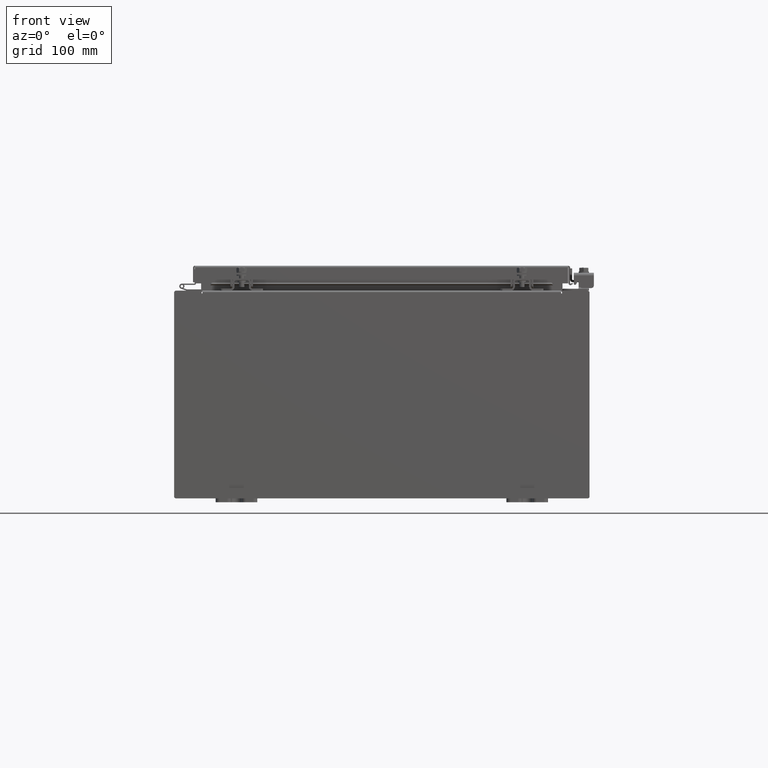
[diagram: clean part render]
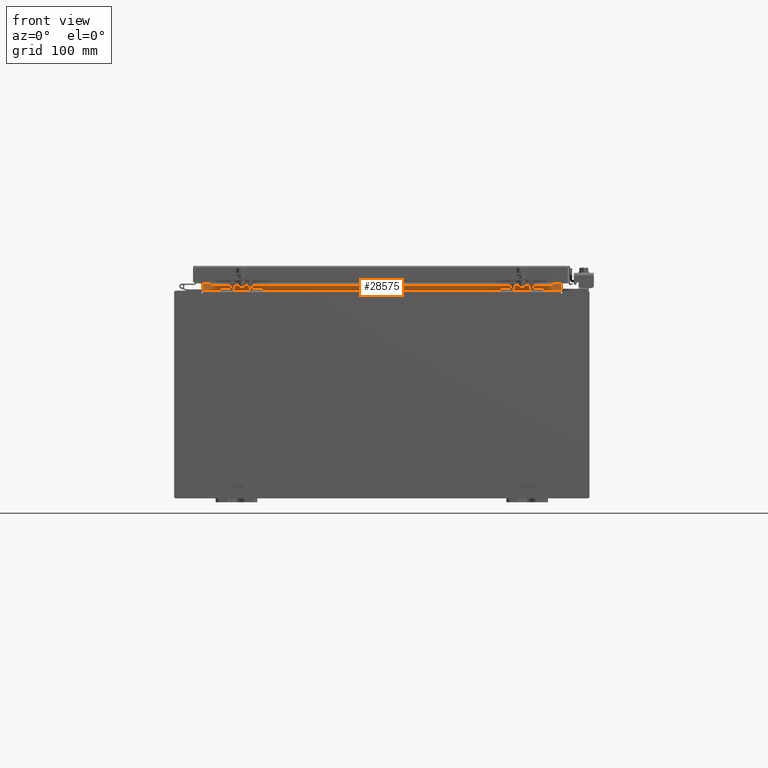
[diagram: same view with one face highlighted and labeled with its STEP entity id]
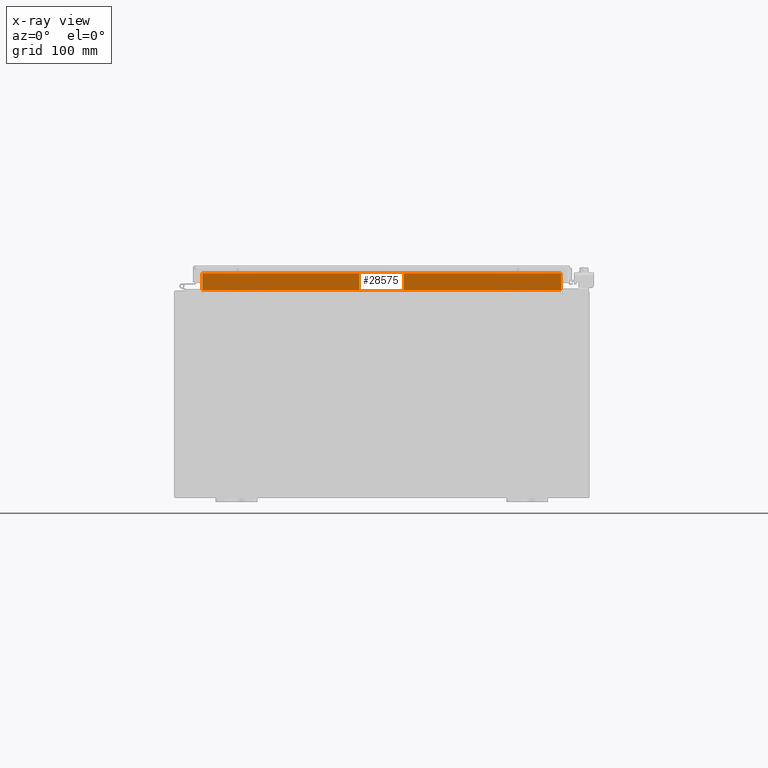
[diagram: x-ray of the same camera — body ghosted, the highlighted face saturated]
A machine part, front view. The second image highlights one B-rep face of the part: STEP entity #28575.
The next image is the same camera in x-ray: the body ghosted, the highlighted face saturated — about 0% of this face is hidden behind the body in this view.
In plain terms, the highlighted planar face has unit normal (-0, -1, 0).
Its self-contained STEP definition (entity closure, byte-faithful):
#389 = EDGE_CURVE ( 'NONE', #14596, #29605, #3641, .T. ) ;
#2114 = CARTESIAN_POINT ( 'NONE',  ( -8.637200000000000000, -1.300299999999999300, 5.013000000000002600 ) ) ;
#3641 = LINE ( 'NONE', #26509, #15605 ) ;
#3931 = CARTESIAN_POINT ( 'NONE',  ( -3.495496509759975400E-016, -1.300299999999999300, 2.731847993664263200E-015 ) ) ;
#5601 = VERTEX_POINT ( 'NONE', #18228 ) ;
#6488 = DIRECTION ( 'NONE',  ( 2.688223102148531000E-016, 1.000000000000000000, 1.677591767810432300E-016 ) ) ;
#6978 = VECTOR ( 'NONE', #19697, 39.37007874015748100 ) ;
#8063 = LINE ( 'NONE', #2114, #20809 ) ;
#8621 = EDGE_CURVE ( 'NONE', #24034, #5601, #22949, .T. ) ;
#9940 = CARTESIAN_POINT ( 'NONE',  ( 8.637200000000005300, -1.300300000000001300, 5.925300000000014200 ) ) ;
#14157 = ORIENTED_EDGE ( 'NONE', *, *, #22519, .F. ) ;
#14596 = VERTEX_POINT ( 'NONE', #14731 ) ;
#14731 = CARTESIAN_POINT ( 'NONE',  ( -8.637200000000000000, -1.300300000000001300, 5.837600000000003700 ) ) ;
#14943 = DIRECTION ( 'NONE',  ( 1.000000000000000000, 2.688223102148527500E-016, 8.326672684688674100E-016 ) ) ;
#15096 = DIRECTION ( 'NONE',  ( 8.326672684688674100E-016, -1.677591767810434500E-016, 1.000000000000000000 ) ) ;
#15605 = VECTOR ( 'NONE', #23941, 39.37007874015748100 ) ;
#17143 = CARTESIAN_POINT ( 'NONE',  ( 8.637200000000000000, -1.300300000000001300, 5.837600000000014300 ) ) ;
#18228 = CARTESIAN_POINT ( 'NONE',  ( 8.637200000000000000, -1.300300000000001300, 5.837600000000014300 ) ) ;
#18407 = FACE_OUTER_BOUND ( 'NONE', #18619, .T. ) ;
#18619 = EDGE_LOOP ( 'NONE', ( #19519, #21050, #19356, #14157 ) ) ;
#18797 = CARTESIAN_POINT ( 'NONE',  ( 8.637199999999996400, -1.300299999999999300, 5.013000000000013200 ) ) ;
#19356 = ORIENTED_EDGE ( 'NONE', *, *, #8621, .F. ) ;
#19519 = ORIENTED_EDGE ( 'NONE', *, *, #389, .F. ) ;
#19697 = DIRECTION ( 'NONE',  ( -1.000000000000000000, -2.688223102148527500E-016, -8.326672684688674100E-016 ) ) ;
#20809 = VECTOR ( 'NONE', #14943, 39.37007874015748100 ) ;
#21050 = ORIENTED_EDGE ( 'NONE', *, *, #23573, .F. ) ;
#21736 = PLANE ( 'NONE',  #32642 ) ;
#22519 = EDGE_CURVE ( 'NONE', #29605, #24034, #8063, .T. ) ;
#22949 = LINE ( 'NONE', #9940, #28949 ) ;
#23573 = EDGE_CURVE ( 'NONE', #5601, #14596, #26474, .T. ) ;
#23941 = DIRECTION ( 'NONE',  ( -8.326672684688674100E-016, 1.677591767810434500E-016, -1.000000000000000000 ) ) ;
#24034 = VERTEX_POINT ( 'NONE', #18797 ) ;
#24259 = DIRECTION ( 'NONE',  ( 8.326672684688674100E-016, -1.677591767810434500E-016, 1.000000000000000000 ) ) ;
#26474 = LINE ( 'NONE', #17143, #6978 ) ;
#26509 = CARTESIAN_POINT ( 'NONE',  ( -8.637200000000000000, -1.300299999999999300, 5.000000000000004400 ) ) ;
#28575 = ADVANCED_FACE ( 'NONE', ( #18407 ), #21736, .T. ) ;
#28892 = CARTESIAN_POINT ( 'NONE',  ( -8.637200000000000000, -1.300299999999999300, 5.013000000000002600 ) ) ;
#28949 = VECTOR ( 'NONE', #15096, 39.37007874015748100 ) ;
#29605 = VERTEX_POINT ( 'NONE', #28892 ) ;
#32642 = AXIS2_PLACEMENT_3D ( 'NONE', #3931, #6488, #24259 ) ;